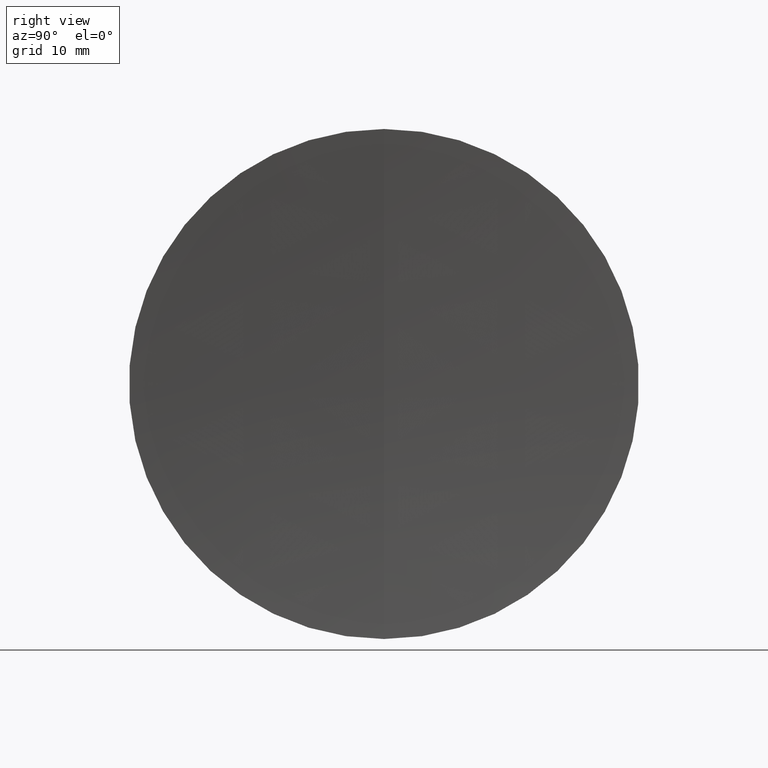
[diagram: clean part render]
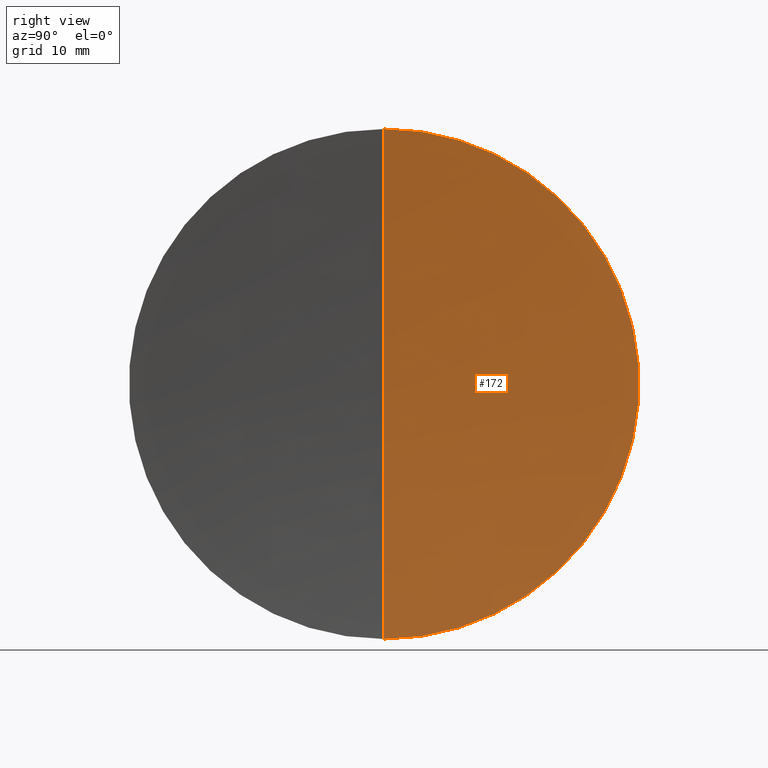
[diagram: same view with one face highlighted and labeled with its STEP entity id]
A machine part, right view. The second image highlights one B-rep face of the part: STEP entity #172.
In plain terms, the highlighted spherical surface has radius 280.55 mm.
Its self-contained STEP definition (entity closure, byte-faithful):
#12 = DIRECTION ( 'NONE',  ( 0.0000000000000000000, 0.0000000000000000000, 1.000000000000000000 ) ) ;
#15 = DIRECTION ( 'NONE',  ( -0.0000000000000000000, -1.000000000000000000, -0.0000000000000000000 ) ) ;
#18 = ORIENTED_EDGE ( 'NONE', *, *, #53, .F. ) ;
#29 = CARTESIAN_POINT ( 'NONE',  ( 440.1247689612468400, 0.0000000000000000000, 0.0000000000000000000 ) ) ;
#48 = DIRECTION ( 'NONE',  ( 0.0000000000000000000, 0.0000000000000000000, -1.000000000000000000 ) ) ;
#49 = VERTEX_POINT ( 'NONE', #152 ) ;
#53 = EDGE_CURVE ( 'NONE', #150, #105, #245, .T. ) ;
#62 = CIRCLE ( 'NONE', #153, 25.39999999999991700 ) ;
#73 = CIRCLE ( 'NONE', #113, 280.5500000000000100 ) ;
#74 = CARTESIAN_POINT ( 'NONE',  ( 440.1247689612468400, 0.0000000000000000000, 0.0000000000000000000 ) ) ;
#89 = SPHERICAL_SURFACE ( 'NONE', #197, 280.5500000000000100 ) ;
#105 = VERTEX_POINT ( 'NONE', #280 ) ;
#113 = AXIS2_PLACEMENT_3D ( 'NONE', #29, #173, #283 ) ;
#114 = DIRECTION ( 'NONE',  ( -1.000000000000000000, -0.0000000000000000000, -0.0000000000000000000 ) ) ;
#122 = CARTESIAN_POINT ( 'NONE',  ( 160.7269477456904700, 0.0000000000000000000, -25.39999999999988100 ) ) ;
#137 = DIRECTION ( 'NONE',  ( 0.0000000000000000000, 0.0000000000000000000, 1.000000000000000000 ) ) ;
#140 = AXIS2_PLACEMENT_3D ( 'NONE', #322, #284, #137 ) ;
#150 = VERTEX_POINT ( 'NONE', #122 ) ;
#152 = CARTESIAN_POINT ( 'NONE',  ( 160.7269477456904700, -3.110602869834261900E-015, 25.39999999999988100 ) ) ;
#153 = AXIS2_PLACEMENT_3D ( 'NONE', #287, #114, #12 ) ;
#172 = ADVANCED_FACE ( 'NONE', ( #346 ), #89, .F. ) ;
#173 = DIRECTION ( 'NONE',  ( 0.0000000000000000000, -1.000000000000000000, -1.224646799147353200E-016 ) ) ;
#197 = AXIS2_PLACEMENT_3D ( 'NONE', #74, #15, #48 ) ;
#222 = EDGE_CURVE ( 'NONE', #49, #150, #62, .T. ) ;
#245 = CIRCLE ( 'NONE', #140, 280.5500000000000100 ) ;
#272 = EDGE_LOOP ( 'NONE', ( #301, #330, #18 ) ) ;
#280 = CARTESIAN_POINT ( 'NONE',  ( 159.5747689612468300, 0.0000000000000000000, -1.717873297503949800E-014 ) ) ;
#283 = DIRECTION ( 'NONE',  ( 0.0000000000000000000, 1.224646799147353200E-016, -1.000000000000000000 ) ) ;
#284 = DIRECTION ( 'NONE',  ( 0.0000000000000000000, 1.000000000000000000, -0.0000000000000000000 ) ) ;
#287 = CARTESIAN_POINT ( 'NONE',  ( 160.7269477456904700, 0.0000000000000000000, 0.0000000000000000000 ) ) ;
#301 = ORIENTED_EDGE ( 'NONE', *, *, #222, .F. ) ;
#304 = EDGE_CURVE ( 'NONE', #49, #105, #73, .T. ) ;
#322 = CARTESIAN_POINT ( 'NONE',  ( 440.1247689612468400, 0.0000000000000000000, 0.0000000000000000000 ) ) ;
#330 = ORIENTED_EDGE ( 'NONE', *, *, #304, .T. ) ;
#346 = FACE_OUTER_BOUND ( 'NONE', #272, .T. ) ;